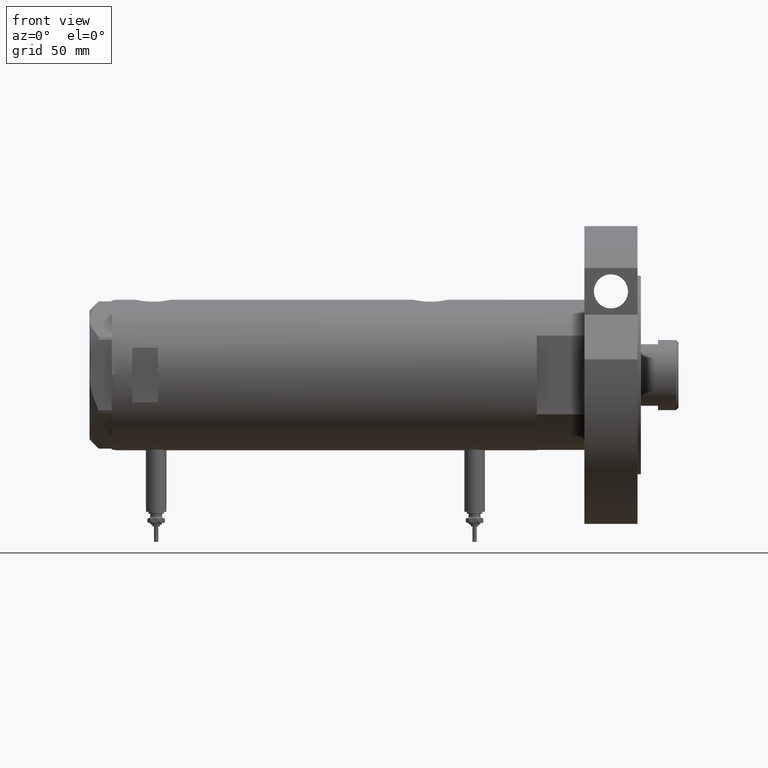
[diagram: clean part render]
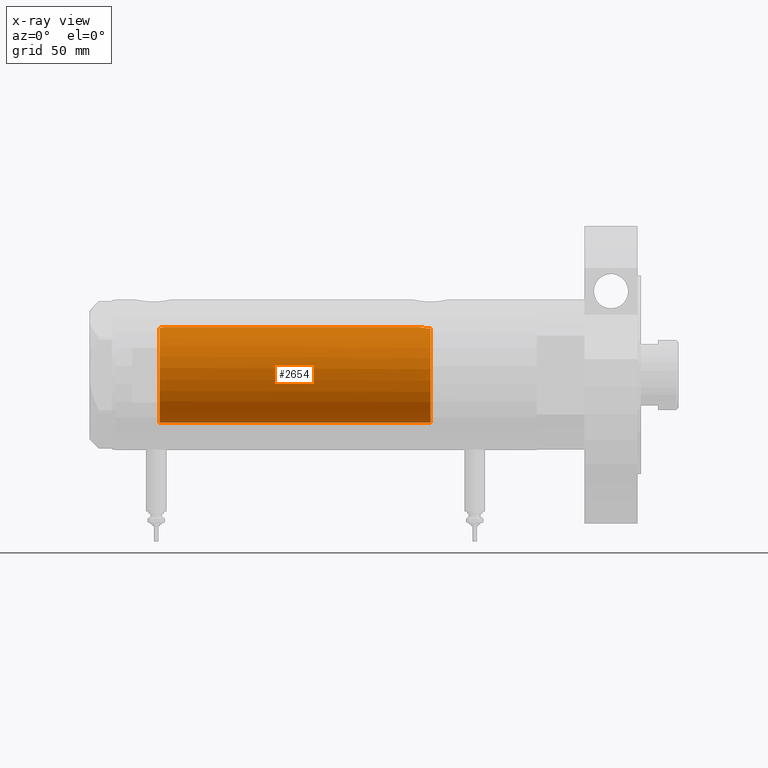
[diagram: x-ray — body ghosted, one internal face saturated and labeled with its STEP entity id]
A machine part, front view, then the same camera in x-ray: the body is ghosted and one INTERNAL B-rep face — a face not visible from any outside direction — is saturated and labeled: STEP entity #2654.
In plain terms, the highlighted cylindrical surface (partial cylindrical patch) has radius 28 mm, axis along (1, 0, -0).
Its self-contained STEP definition (entity closure, byte-faithful):
#110 = CARTESIAN_POINT ( 'NONE',  ( 27.80238224209237430, -3.326386449198543538, -55.41852099557871014 ) ) ;
#125 = AXIS2_PLACEMENT_3D ( 'NONE', #5886, #4626, #6992 ) ;
#149 = DIRECTION ( 'NONE',  ( -0.000000000000000000, -0.000000000000000000, -1.000000000000000000 ) ) ;
#581 = CARTESIAN_POINT ( 'NONE',  ( 27.22359243188622457, -6.548490838374227963, -60.32326656774585416 ) ) ;
#592 = VERTEX_POINT ( 'NONE', #1225 ) ;
#597 = EDGE_CURVE ( 'NONE', #1706, #592, #6970, .T. ) ;
#1015 = CARTESIAN_POINT ( 'NONE',  ( 27.87937907436173646, -2.608343522657388114, 94.85310177797239817 ) ) ;
#1126 = DIRECTION ( 'NONE',  ( -1.000000000000000000, 0.000000000000000000, 0.000000000000000000 ) ) ;
#1225 = CARTESIAN_POINT ( 'NONE',  ( -28.00000000000000000, 0.000000000000000000, -61.20000000000000284 ) ) ;
#1234 = CARTESIAN_POINT ( 'NONE',  ( 27.70817449315709524, -4.048115514111798596, -55.89463981057747333 ) ) ;
#1276 = CARTESIAN_POINT ( 'NONE',  ( 27.34439869716139171, -6.024183900845905271, -58.44423424753806273 ) ) ;
#1329 = DIRECTION ( 'NONE',  ( 0.000000000000000000, 0.000000000000000000, 1.000000000000000000 ) ) ;
#1332 = CARTESIAN_POINT ( 'NONE',  ( 27.46622653369042411, -5.441176343402230664, 97.20000000000000284 ) ) ;
#1497 = CARTESIAN_POINT ( 'NONE',  ( 28.00000000000000000, 0.000000000000000000, 94.32000000000000739 ) ) ;
#1585 = CARTESIAN_POINT ( 'NONE',  ( 27.80347162683809259, -3.320043793664065657, 95.21279742576763283 ) ) ;
#1706 = VERTEX_POINT ( 'NONE', #5999 ) ;
#1798 = CARTESIAN_POINT ( 'NONE',  ( 27.98730817101646551, -0.8707001454186197309, -54.57418472479973559 ) ) ;
#1801 = B_SPLINE_CURVE_WITH_KNOTS ( 'NONE', 3,
 ( #5059, #6249, #7381, #5670, #2151, #1015, #4482, #1585, #3337, #5112, #3314, #6789, #4427, #3234 ),
 .UNSPECIFIED., .F., .F.,
 ( 4, 2, 2, 2, 2, 2, 4 ),
 ( 0.000000000000000000, 0.001600622945448065652, 0.002400934418172098045, 0.003201245890896130437, 0.004001557363620162830, 0.004801868836344194355, 0.006402491781792285161 ),
 .UNSPECIFIED. ) ;
#1877 = CARTESIAN_POINT ( 'NONE',  ( 27.84562549742226523, -2.942523713096117710, -55.21055141078907269 ) ) ;
#1936 = DIRECTION ( 'NONE',  ( 1.000000000000000000, 0.000000000000000000, 0.000000000000000000 ) ) ;
#1943 = CARTESIAN_POINT ( 'NONE',  ( -28.00000000000000000, 0.000000000000000000, 123.2000000000000028 ) ) ;
#2063 = AXIS2_PLACEMENT_3D ( 'NONE', #4674, #6354, #1126 ) ;
#2151 = CARTESIAN_POINT ( 'NONE',  ( 27.92172852149584727, -2.107204279616225140, 94.66075932795374115 ) ) ;
#2196 = CIRCLE ( 'NONE', #5862, 28.00000000000000000 ) ;
#2344 = CARTESIAN_POINT ( 'NONE',  ( 27.36461315879794043, -5.931995402771976345, -58.24427370164930551 ) ) ;
#2409 = CARTESIAN_POINT ( 'NONE',  ( 27.92072186409136236, -2.143620579020478090, -54.86381653969048955 ) ) ;
#2654 = ADVANCED_FACE ( 'NONE', ( #3402 ), #4018, .F. ) ;
#2874 = VERTEX_POINT ( 'NONE', #1497 ) ;
#2909 = CARTESIAN_POINT ( 'NONE',  ( 27.26146154097650154, -6.389008671741138734, -59.46702257288441729 ) ) ;
#2949 = CARTESIAN_POINT ( 'NONE',  ( 27.40754191563011588, -5.730381220489944027, -57.85863096555547713 ) ) ;
#3087 = DIRECTION ( 'NONE',  ( -0.000000000000000000, -0.000000000000000000, -1.000000000000000000 ) ) ;
#3127 = ORIENTED_EDGE ( 'NONE', *, *, #3862, .F. ) ;
#3234 = CARTESIAN_POINT ( 'NONE',  ( 27.46622653369042411, -5.441176343402230664, 97.20000000000000284 ) ) ;
#3251 = VERTEX_POINT ( 'NONE', #4455 ) ;
#3314 = CARTESIAN_POINT ( 'NONE',  ( 27.68450581507584474, -4.196237264393388067, 95.82467802964416137 ) ) ;
#3337 = CARTESIAN_POINT ( 'NONE',  ( 27.77532582369374481, -3.546840381797768949, 95.35134423525664715 ) ) ;
#3402 = FACE_OUTER_BOUND ( 'NONE', #7544, .T. ) ;
#3433 = VECTOR ( 'NONE', #149, 1000.000000000000000 ) ;
#3556 = CARTESIAN_POINT ( 'NONE',  ( 27.94978721344213568, -1.729827962054681922, -54.73650615356604021 ) ) ;
#3596 = CARTESIAN_POINT ( 'NONE',  ( 27.50152613123828260, -5.265397630035327126, -57.13030070339349464 ) ) ;
#3610 = ORIENTED_EDGE ( 'NONE', *, *, #4932, .F. ) ;
#3623 = CARTESIAN_POINT ( 'NONE',  ( 27.28993558706078915, -6.267945658363877293, -59.05080727201159618 ) ) ;
#3826 = CARTESIAN_POINT ( 'NONE',  ( -28.00000000000000000, 0.000000000000000000, 97.20000000000000284 ) ) ;
#3862 = EDGE_CURVE ( 'NONE', #2874, #5816, #1801, .T. ) ;
#4018 = CYLINDRICAL_SURFACE ( 'NONE', #2063, 28.00000000000000000 ) ;
#4127 = CARTESIAN_POINT ( 'NONE',  ( 27.65700784474207552, -4.380217411398919403, -56.17047453774085852 ) ) ;
#4170 = CARTESIAN_POINT ( 'NONE',  ( 27.43032278742161623, -5.620674311437143800, -57.67201933177630480 ) ) ;
#4312 = LINE ( 'NONE', #4959, #3433 ) ;
#4427 = CARTESIAN_POINT ( 'NONE',  ( 27.52591771332015114, -5.139864392033250517, 96.75689419952075809 ) ) ;
#4455 = CARTESIAN_POINT ( 'NONE',  ( 28.00000000000000000, 8.058211040235281960E-16, -54.52000000000001023 ) ) ;
#4482 = CARTESIAN_POINT ( 'NONE',  ( 27.85549665828546750, -2.850794839423819393, 94.96367683698767337 ) ) ;
#4626 = DIRECTION ( 'NONE',  ( 0.000000000000000000, 0.000000000000000000, -1.000000000000000000 ) ) ;
#4674 = CARTESIAN_POINT ( 'NONE',  ( 0.000000000000000000, 0.000000000000000000, 123.2000000000000028 ) ) ;
#4784 = ORIENTED_EDGE ( 'NONE', *, *, #5835, .T. ) ;
#4853 = ORIENTED_EDGE ( 'NONE', *, *, #6957, .F. ) ;
#4932 = EDGE_CURVE ( 'NONE', #1706, #3251, #5301, .T. ) ;
#4959 = CARTESIAN_POINT ( 'NONE',  ( 28.00000000000000000, 3.429011037612589276E-15, 123.2000000000000028 ) ) ;
#5059 = CARTESIAN_POINT ( 'NONE',  ( 28.00000000000000000, 0.000000000000000000, 94.32000000000000739 ) ) ;
#5112 = CARTESIAN_POINT ( 'NONE',  ( 27.71590503262370930, -3.984646725731645578, 95.65688566206239329 ) ) ;
#5243 = CARTESIAN_POINT ( 'NONE',  ( 28.00000000000000000, 8.058211040235281960E-16, -54.52000000000001023 ) ) ;
#5301 = B_SPLINE_CURVE_WITH_KNOTS ( 'NONE', 3,
 ( #7030, #7000, #581, #2909, #3623, #1276, #2344, #2949, #4170, #3596, #5347, #4127, #1234, #6530, #110, #1877, #7138, #2409, #3556, #5851, #1798, #5316, #7062, #5243 ),
 .UNSPECIFIED., .F., .F.,
 ( 4, 2, 2, 2, 2, 2, 2, 2, 2, 2, 2, 4 ),
 ( 0.01022506235776657162, 0.01152748911132702239, 0.01282991586488747143, 0.01348112924166769769, 0.01413234261844792047, 0.01543476937200837125, 0.01673719612556882202, 0.01738840950234904481, 0.01803962287912927107, 0.01934204963268972011, 0.01999326300946994983, 0.02064447638625017609 ),
 .UNSPECIFIED. ) ;
#5316 = CARTESIAN_POINT ( 'NONE',  ( 27.99747352180818538, -0.4347571716796903019, -54.53072531013187074 ) ) ;
#5347 = CARTESIAN_POINT ( 'NONE',  ( 27.55308463769899774, -4.992385646466217075, -56.79156508565561978 ) ) ;
#5495 = EDGE_CURVE ( 'NONE', #6564, #5816, #2196, .T. ) ;
#5656 = ORIENTED_EDGE ( 'NONE', *, *, #597, .T. ) ;
#5670 = CARTESIAN_POINT ( 'NONE',  ( 27.94009016578284132, -1.849003963078879931, 94.57947875320516573 ) ) ;
#5816 = VERTEX_POINT ( 'NONE', #1332 ) ;
#5835 = EDGE_CURVE ( 'NONE', #2874, #3251, #4312, .T. ) ;
#5851 = CARTESIAN_POINT ( 'NONE',  ( 27.97963188585489291, -1.089002775846584337, -54.60708365738663161 ) ) ;
#5862 = AXIS2_PLACEMENT_3D ( 'NONE', #7131, #1329, #1936 ) ;
#5886 = CARTESIAN_POINT ( 'NONE',  ( 0.000000000000000000, 0.000000000000000000, -61.20000000000000284 ) ) ;
#5999 = CARTESIAN_POINT ( 'NONE',  ( 27.21605408577812568, -6.579240077698937483, -61.20000000000000284 ) ) ;
#6249 = CARTESIAN_POINT ( 'NONE',  ( 28.00000000000001066, -0.5413643627070152675, 94.32000000000002160 ) ) ;
#6354 = DIRECTION ( 'NONE',  ( -0.000000000000000000, -0.000000000000000000, -1.000000000000000000 ) ) ;
#6530 = CARTESIAN_POINT ( 'NONE',  ( 27.77950496257090762, -3.511644525604265432, -55.53121142391831455 ) ) ;
#6564 = VERTEX_POINT ( 'NONE', #3826 ) ;
#6678 = LINE ( 'NONE', #1943, #6984 ) ;
#6705 = ORIENTED_EDGE ( 'NONE', *, *, #5495, .T. ) ;
#6789 = CARTESIAN_POINT ( 'NONE',  ( 27.59002303441815229, -4.790793940098342141, 96.35816176521461784 ) ) ;
#6957 = EDGE_CURVE ( 'NONE', #6564, #592, #6678, .T. ) ;
#6970 = CIRCLE ( 'NONE', #125, 28.00000000000000000 ) ;
#6984 = VECTOR ( 'NONE', #3087, 1000.000000000000000 ) ;
#6992 = DIRECTION ( 'NONE',  ( -1.000000000000000000, 0.000000000000000000, 0.000000000000000000 ) ) ;
#7000 = CARTESIAN_POINT ( 'NONE',  ( 27.21445766202535310, -6.585843933871719180, -60.76551644800678531 ) ) ;
#7030 = CARTESIAN_POINT ( 'NONE',  ( 27.21605408577812568, -6.579240077698937483, -61.20000000000000284 ) ) ;
#7062 = CARTESIAN_POINT ( 'NONE',  ( 27.99999999999999645, -0.2171842281426351329, -54.52000000000000313 ) ) ;
#7131 = CARTESIAN_POINT ( 'NONE',  ( 0.000000000000000000, 0.000000000000000000, 97.20000000000000284 ) ) ;
#7138 = CARTESIAN_POINT ( 'NONE',  ( 27.86589383012872645, -2.744524676092583437, -55.11575755532262377 ) ) ;
#7381 = CARTESIAN_POINT ( 'NONE',  ( 27.98432695902670631, -1.071102777755447377, 94.38580344277589518 ) ) ;
#7544 = EDGE_LOOP ( 'NONE', ( #3127, #4784, #3610, #5656, #4853, #6705 ) ) ;